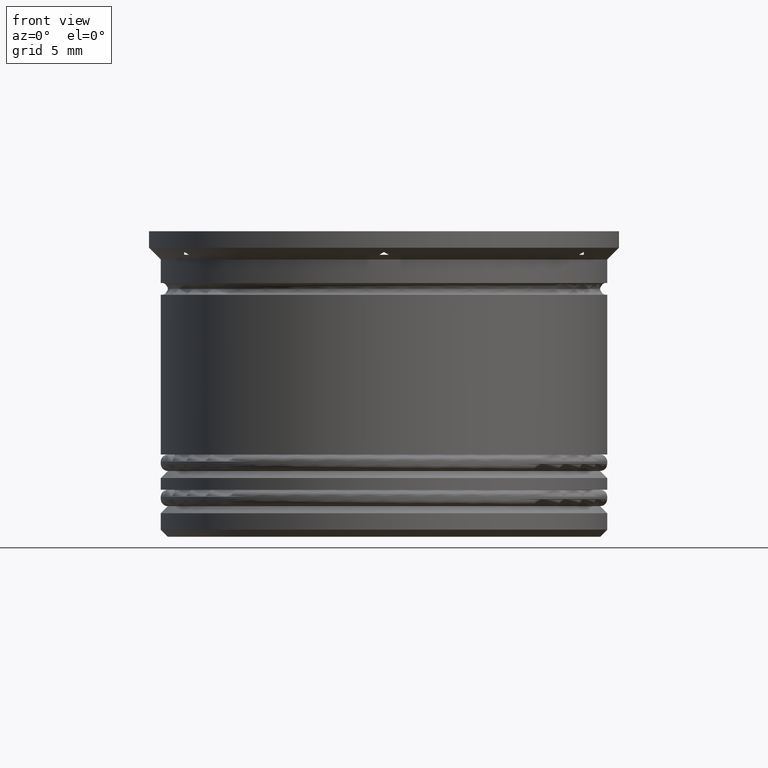
[diagram: clean part render]
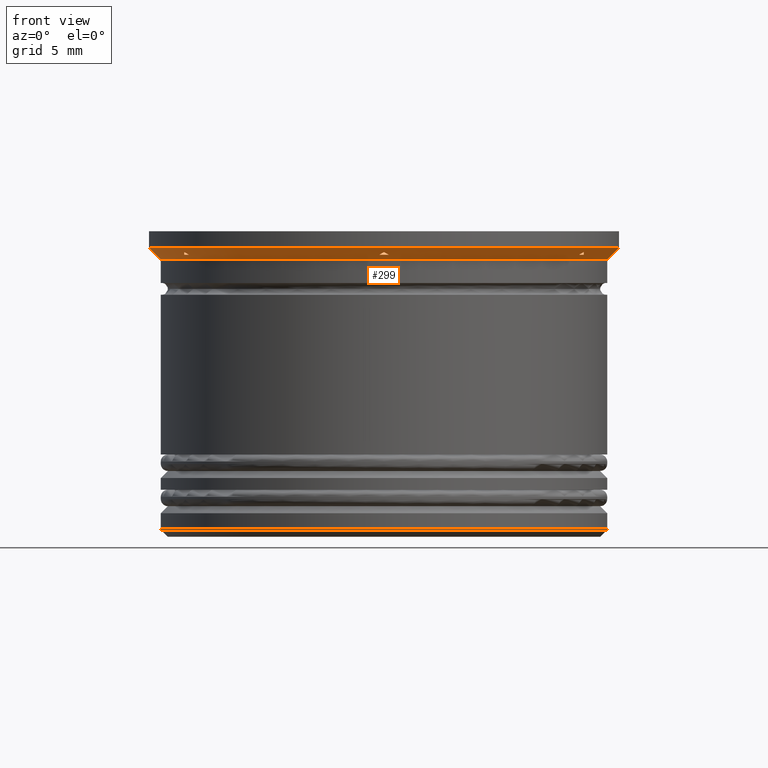
[diagram: same view with one face highlighted and labeled with its STEP entity id]
A machine part, front view. The second image highlights one B-rep face of the part: STEP entity #299.
In plain terms, the highlighted conical surface has half-angle 45 deg.
Its self-contained STEP definition (entity closure, byte-faithful):
#4 = AXIS2_PLACEMENT_3D ( 'NONE', #1370, #406, #1897 ) ;
#24 = FACE_BOUND ( 'NONE', #980, .T. ) ;
#39 = CARTESIAN_POINT ( 'NONE',  ( 8.500000000000000000, -4.829692282531617309, -0.9239379265664597884 ) ) ;
#46 = AXIS2_PLACEMENT_3D ( 'NONE', #1162, #671, #1819 ) ;
#94 = CARTESIAN_POINT ( 'NONE',  ( 8.334195073742550113E-16, -9.814954576223639648, -0.8850454237763576426 ) ) ;
#99 = ORIENTED_EDGE ( 'NONE', *, *, #615, .F. ) ;
#145 = ORIENTED_EDGE ( 'NONE', *, *, #1459, .F. ) ;
#158 = CARTESIAN_POINT ( 'NONE',  ( 8.432620052822841217, -4.946379118752536108, -0.9239472544170723722 ) ) ;
#171 = B_SPLINE_CURVE_WITH_KNOTS ( 'NONE', 3,
 ( #421, #2088, #933, #1249 ),
 .UNSPECIFIED., .F., .F.,
 ( 4, 4 ),
 ( 0.01822403315942614649, 0.01848585035615631089 ),
 .UNSPECIFIED. ) ;
#182 = DIRECTION ( 'NONE',  ( 1.000000000000000000, 2.842170943040400743E-14, 0.000000000000000000 ) ) ;
#205 = EDGE_CURVE ( 'NONE', #747, #559, #978, .T. ) ;
#210 = VERTEX_POINT ( 'NONE', #1975 ) ;
#214 = CIRCLE ( 'NONE', #4, 10.00000000000000000 ) ;
#218 = CIRCLE ( 'NONE', #1636, 9.699999999999997513 ) ;
#272 = B_SPLINE_CURVE_WITH_KNOTS ( 'NONE', 3,
 ( #597, #2081, #1281, #443 ),
 .UNSPECIFIED., .F., .F.,
 ( 4, 4 ),
 ( 0.007081054265521766720, 0.007339969732947483096 ),
 .UNSPECIFIED. ) ;
#291 = B_SPLINE_CURVE_WITH_KNOTS ( 'NONE', 3,
 ( #94, #477, #937, #810 ),
 .UNSPECIFIED., .F., .F.,
 ( 4, 4 ),
 ( 0.008247477501769864827, 0.008508082499550510477 ),
 .UNSPECIFIED. ) ;
#299 = ADVANCED_FACE ( 'NONE', ( #2053, #24, #1191, #688 ), #465, .T. ) ;
#306 = EDGE_CURVE ( 'NONE', #793, #1078, #171, .T. ) ;
#315 = AXIS2_PLACEMENT_3D ( 'NONE', #1555, #1056, #1071 ) ;
#338 = VERTEX_POINT ( 'NONE', #983 ) ;
#364 = EDGE_CURVE ( 'NONE', #210, #1801, #1367, .T. ) ;
#369 = VERTEX_POINT ( 'NONE', #1807 ) ;
#400 = VERTEX_POINT ( 'NONE', #1934 ) ;
#406 = DIRECTION ( 'NONE',  ( -0.000000000000000000, -0.000000000000000000, 1.000000000000000000 ) ) ;
#421 = CARTESIAN_POINT ( 'NONE',  ( 0.2027787310303974799, -9.697880221277310753, -1.000000000000000000 ) ) ;
#423 = CARTESIAN_POINT ( 'NONE',  ( 8.500000000000000000, -4.751647686047524743, -0.9622669149654717868 ) ) ;
#426 = ORIENTED_EDGE ( 'NONE', *, *, #1818, .T. ) ;
#428 = CARTESIAN_POINT ( 'NONE',  ( -8.500000000000001776, -4.907477288111819824, -0.8850454237763563103 ) ) ;
#430 = ORIENTED_EDGE ( 'NONE', *, *, #495, .T. ) ;
#443 = CARTESIAN_POINT ( 'NONE',  ( -8.500000000000001776, -4.673328578219158480, -1.000000000000000000 ) ) ;
#444 = CARTESIAN_POINT ( 'NONE',  ( -8.297221268969604324, -5.024551643058148720, -1.000000000000000000 ) ) ;
#465 = CONICAL_SURFACE ( 'NONE', #315, 10.00000000000000000, 0.7853981633974500554 ) ;
#477 = CARTESIAN_POINT ( 'NONE',  ( -0.06737994717715768689, -9.776052745582923365, -0.9239472544170721502 ) ) ;
#491 = CARTESIAN_POINT ( 'NONE',  ( 0.000000000000000000, 0.000000000000000000, -1.000000000000000000 ) ) ;
#495 = EDGE_CURVE ( 'NONE', #1225, #338, #917, .T. ) ;
#510 = ORIENTED_EDGE ( 'NONE', *, *, #2029, .F. ) ;
#524 = CARTESIAN_POINT ( 'NONE',  ( 8.297221268969604324, -5.024551643058152273, -1.000000000000000000 ) ) ;
#548 = EDGE_CURVE ( 'NONE', #1225, #1420, #1173, .T. ) ;
#559 = VERTEX_POINT ( 'NONE', #524 ) ;
#582 = CARTESIAN_POINT ( 'NONE',  ( 8.500000000000000000, -4.907477288111820712, -0.8850454237763569765 ) ) ;
#597 = CARTESIAN_POINT ( 'NONE',  ( -8.500000000000001776, -4.907477288111819824, -0.8850454237763563103 ) ) ;
#605 = CARTESIAN_POINT ( 'NONE',  ( -10.00000000000000000, 1.224646799147353256E-15, -0.6999999999999968470 ) ) ;
#609 = DIRECTION ( 'NONE',  ( 0.7071067811865487940, 0.000000000000000000, 0.7071067811865463515 ) ) ;
#610 = EDGE_LOOP ( 'NONE', ( #1300, #1444, #510 ) ) ;
#615 = EDGE_CURVE ( 'NONE', #400, #747, #1812, .T. ) ;
#671 = DIRECTION ( 'NONE',  ( -0.000000000000000000, -0.000000000000000000, -1.000000000000000000 ) ) ;
#688 = FACE_BOUND ( 'NONE', #1129, .T. ) ;
#700 = EDGE_LOOP ( 'NONE', ( #1195, #426, #1630, #2092 ) ) ;
#704 = CIRCLE ( 'NONE', #46, 9.699999999999997513 ) ;
#706 = CIRCLE ( 'NONE', #1746, 9.499999999999998224 ) ;
#747 = VERTEX_POINT ( 'NONE', #2098 ) ;
#793 = VERTEX_POINT ( 'NONE', #1495 ) ;
#810 = CARTESIAN_POINT ( 'NONE',  ( -0.2027787310303940105, -9.697880221277308976, -1.000000000000000000 ) ) ;
#917 = CIRCLE ( 'NONE', #1230, 9.699999999999997513 ) ;
#932 = CARTESIAN_POINT ( 'NONE',  ( 8.334195073742550113E-16, -9.814954576223639648, -0.8850454237763576426 ) ) ;
#933 = CARTESIAN_POINT ( 'NONE',  ( 0.06730142371672512280, -9.776098081123942407, -0.9239019188760531076 ) ) ;
#937 = CARTESIAN_POINT ( 'NONE',  ( -0.1349689590794710126, -9.737030211366862531, -0.9622761304077310784 ) ) ;
#950 = EDGE_CURVE ( 'NONE', #369, #1801, #214, .T. ) ;
#978 = B_SPLINE_CURVE_WITH_KNOTS ( 'NONE', 3,
 ( #2168, #158, #1486, #1469 ),
 .UNSPECIFIED., .F., .F.,
 ( 4, 4 ),
 ( 0.008247477501769864827, 0.008508082499550513947 ),
 .UNSPECIFIED. ) ;
#980 = EDGE_LOOP ( 'NONE', ( #99, #1566, #1030 ) ) ;
#982 = DIRECTION ( 'NONE',  ( -0.7071067811865487940, 8.659560562354948882E-17, 0.7071067811865463515 ) ) ;
#983 = CARTESIAN_POINT ( 'NONE',  ( -8.500000000000001776, -4.673328578219158480, -1.000000000000000000 ) ) ;
#1030 = ORIENTED_EDGE ( 'NONE', *, *, #205, .F. ) ;
#1056 = DIRECTION ( 'NONE',  ( -0.000000000000000000, -0.000000000000000000, 1.000000000000000000 ) ) ;
#1057 = CARTESIAN_POINT ( 'NONE',  ( -9.499999999999998224, 1.163414459189985288E-15, -1.199999999999999067 ) ) ;
#1071 = DIRECTION ( 'NONE',  ( 1.000000000000000000, 0.000000000000000000, 0.000000000000000000 ) ) ;
#1078 = VERTEX_POINT ( 'NONE', #932 ) ;
#1080 = CARTESIAN_POINT ( 'NONE',  ( 10.00000000000000000, 0.000000000000000000, -0.6999999999999968470 ) ) ;
#1129 = EDGE_LOOP ( 'NONE', ( #1471, #430, #145 ) ) ;
#1162 = CARTESIAN_POINT ( 'NONE',  ( 0.000000000000000000, 0.000000000000000000, -1.000000000000000000 ) ) ;
#1173 = B_SPLINE_CURVE_WITH_KNOTS ( 'NONE', 3,
 ( #1833, #1856, #1527, #1335 ),
 .UNSPECIFIED., .F., .F.,
 ( 4, 4 ),
 ( 0.01822403315942614302, 0.01848585035615631436 ),
 .UNSPECIFIED. ) ;
#1185 = DIRECTION ( 'NONE',  ( 1.000000000000000000, 0.000000000000000000, 0.000000000000000000 ) ) ;
#1191 = FACE_BOUND ( 'NONE', #610, .T. ) ;
#1195 = ORIENTED_EDGE ( 'NONE', *, *, #1631, .F. ) ;
#1200 = VECTOR ( 'NONE', #982, 1000.000000000000000 ) ;
#1225 = VERTEX_POINT ( 'NONE', #444 ) ;
#1230 = AXIS2_PLACEMENT_3D ( 'NONE', #1488, #1822, #182 ) ;
#1241 = CARTESIAN_POINT ( 'NONE',  ( 8.500000000000000000, -4.673328578219161145, -1.000000000000000000 ) ) ;
#1249 = CARTESIAN_POINT ( 'NONE',  ( 8.334195073742550113E-16, -9.814954576223639648, -0.8850454237763576426 ) ) ;
#1281 = CARTESIAN_POINT ( 'NONE',  ( -8.500000000000001776, -4.751733060314974999, -0.9622257828001224977 ) ) ;
#1293 = EDGE_CURVE ( 'NONE', #793, #1580, #218, .T. ) ;
#1300 = ORIENTED_EDGE ( 'NONE', *, *, #306, .F. ) ;
#1335 = CARTESIAN_POINT ( 'NONE',  ( -8.500000000000001776, -4.907477288111819824, -0.8850454237763563103 ) ) ;
#1360 = DIRECTION ( 'NONE',  ( -0.000000000000000000, -0.000000000000000000, 1.000000000000000000 ) ) ;
#1367 = LINE ( 'NONE', #1080, #2064 ) ;
#1370 = CARTESIAN_POINT ( 'NONE',  ( 0.000000000000000000, 0.000000000000000000, -0.6999999999999968470 ) ) ;
#1420 = VERTEX_POINT ( 'NONE', #428 ) ;
#1444 = ORIENTED_EDGE ( 'NONE', *, *, #1293, .T. ) ;
#1459 = EDGE_CURVE ( 'NONE', #1420, #338, #272, .T. ) ;
#1469 = CARTESIAN_POINT ( 'NONE',  ( 8.297221268969604324, -5.024551643058152273, -1.000000000000000000 ) ) ;
#1471 = ORIENTED_EDGE ( 'NONE', *, *, #548, .F. ) ;
#1486 = CARTESIAN_POINT ( 'NONE',  ( 8.365031040920527516, -4.985401652968598718, -0.9622761304077309674 ) ) ;
#1488 = CARTESIAN_POINT ( 'NONE',  ( 0.000000000000000000, 0.000000000000000000, -1.000000000000000000 ) ) ;
#1495 = CARTESIAN_POINT ( 'NONE',  ( 0.2027787310303974799, -9.697880221277310753, -1.000000000000000000 ) ) ;
#1527 = CARTESIAN_POINT ( 'NONE',  ( -8.432698576283277347, -4.946333783211516177, -0.9239019188760515533 ) ) ;
#1555 = CARTESIAN_POINT ( 'NONE',  ( 0.000000000000000000, 0.000000000000000000, -0.6999999999999968470 ) ) ;
#1566 = ORIENTED_EDGE ( 'NONE', *, *, #2100, .T. ) ;
#1580 = VERTEX_POINT ( 'NONE', #1744 ) ;
#1595 = LINE ( 'NONE', #605, #1200 ) ;
#1630 = ORIENTED_EDGE ( 'NONE', *, *, #364, .T. ) ;
#1631 = EDGE_CURVE ( 'NONE', #2131, #369, #1595, .T. ) ;
#1636 = AXIS2_PLACEMENT_3D ( 'NONE', #491, #2014, #2141 ) ;
#1744 = CARTESIAN_POINT ( 'NONE',  ( -0.2027787310303940105, -9.697880221277308976, -1.000000000000000000 ) ) ;
#1746 = AXIS2_PLACEMENT_3D ( 'NONE', #2012, #1360, #1185 ) ;
#1801 = VERTEX_POINT ( 'NONE', #2173 ) ;
#1807 = CARTESIAN_POINT ( 'NONE',  ( -10.00000000000000000, 1.224646799147353256E-15, -0.6999999999999968470 ) ) ;
#1812 = B_SPLINE_CURVE_WITH_KNOTS ( 'NONE', 3,
 ( #1241, #423, #39, #582 ),
 .UNSPECIFIED., .F., .F.,
 ( 4, 4 ),
 ( 0.01704092202293524053, 0.01730192662281649155 ),
 .UNSPECIFIED. ) ;
#1818 = EDGE_CURVE ( 'NONE', #2131, #210, #706, .T. ) ;
#1819 = DIRECTION ( 'NONE',  ( 1.000000000000000000, 0.000000000000000000, 0.000000000000000000 ) ) ;
#1822 = DIRECTION ( 'NONE',  ( -0.000000000000000000, -0.000000000000000000, -1.000000000000000000 ) ) ;
#1833 = CARTESIAN_POINT ( 'NONE',  ( -8.297221268969604324, -5.024551643058148720, -1.000000000000000000 ) ) ;
#1856 = CARTESIAN_POINT ( 'NONE',  ( -8.365111701610439709, -4.985355083497564621, -0.9622312573273482661 ) ) ;
#1897 = DIRECTION ( 'NONE',  ( -1.000000000000000000, 0.000000000000000000, 0.000000000000000000 ) ) ;
#1934 = CARTESIAN_POINT ( 'NONE',  ( 8.500000000000000000, -4.673328578219161145, -1.000000000000000000 ) ) ;
#1975 = CARTESIAN_POINT ( 'NONE',  ( 9.499999999999998224, 0.000000000000000000, -1.199999999999999067 ) ) ;
#2012 = CARTESIAN_POINT ( 'NONE',  ( 0.000000000000000000, 0.000000000000000000, -1.199999999999999067 ) ) ;
#2014 = DIRECTION ( 'NONE',  ( -0.000000000000000000, -0.000000000000000000, -1.000000000000000000 ) ) ;
#2029 = EDGE_CURVE ( 'NONE', #1078, #1580, #291, .T. ) ;
#2053 = FACE_OUTER_BOUND ( 'NONE', #700, .T. ) ;
#2064 = VECTOR ( 'NONE', #609, 1000.000000000000000 ) ;
#2081 = CARTESIAN_POINT ( 'NONE',  ( -8.500000000000001776, -4.829775330622932294, -0.9238964025208137310 ) ) ;
#2088 = CARTESIAN_POINT ( 'NONE',  ( 0.1348882983895602905, -9.737076780837897516, -0.9622312573273488212 ) ) ;
#2092 = ORIENTED_EDGE ( 'NONE', *, *, #950, .F. ) ;
#2098 = CARTESIAN_POINT ( 'NONE',  ( 8.500000000000000000, -4.907477288111820712, -0.8850454237763569765 ) ) ;
#2100 = EDGE_CURVE ( 'NONE', #400, #559, #704, .T. ) ;
#2131 = VERTEX_POINT ( 'NONE', #1057 ) ;
#2141 = DIRECTION ( 'NONE',  ( 1.000000000000000000, 0.000000000000000000, 0.000000000000000000 ) ) ;
#2168 = CARTESIAN_POINT ( 'NONE',  ( 8.500000000000000000, -4.907477288111820712, -0.8850454237763569765 ) ) ;
#2173 = CARTESIAN_POINT ( 'NONE',  ( 10.00000000000000000, 0.000000000000000000, -0.6999999999999968470 ) ) ;